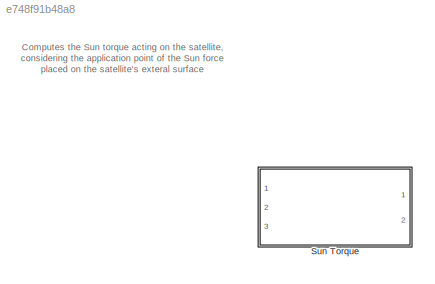
MODEL slx_e748f91b48a8
KIND library
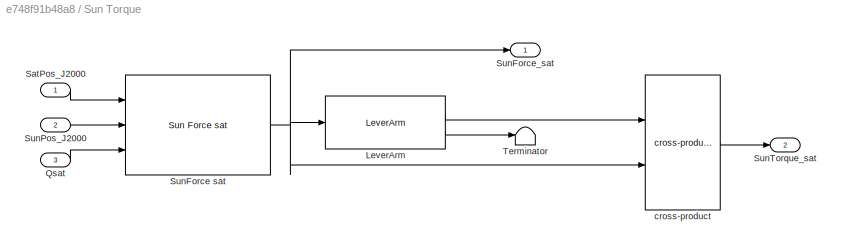
BLOCK [SubSystem] Sun Torque
  Ports = [3, 2]
  RequestExecContextInheritance = off
BLOCK [Reference] Sun Torque/LeverArm  REF=LeverArm/LeverArm
  Ports = [1, 2]
  SourceBlock = LeverArm/LeverArm
  SourceType = SubSystem
BLOCK [Inport] Sun Torque/Qsat
  IconDisplay = Port number
  Port = 3
BLOCK [Inport] Sun Torque/SatPos_J2000
  IconDisplay = Port number
BLOCK [Reference] Sun Torque/SunForce sat  REF=SunForce_sat/Sun Force sat
  Ports = [3, 1]
  SourceBlock = SunForce_sat/Sun Force sat
  SourceType = SubSystem
BLOCK [Outport] Sun Torque/SunForce_sat
  IconDisplay = Port number
BLOCK [Inport] Sun Torque/SunPos_J2000
  IconDisplay = Port number
  Port = 2
BLOCK [Outport] Sun Torque/SunTorque_sat
  IconDisplay = Port number
  Port = 2
BLOCK [Terminator] Sun Torque/Terminator
BLOCK [Reference] Sun Torque/cross-product  REF=CrossProd/cross-product
  Ports = [2, 1]
  SourceBlock = CrossProd/cross-product
  SourceType = SubSystem
ANNOTATION (root): Computes the Sun torque acting on the satellite, considering the application point of the Sun force placed on the satellite's exteral surface
LINE Sun Torque/LeverArm:1 -> Sun Torque/cross-product:1
LINE Sun Torque/LeverArm:2 -> Sun Torque/Terminator:1
LINE Sun Torque/Qsat:1 -> Sun Torque/SunForce sat:3
LINE Sun Torque/SatPos_J2000:1 -> Sun Torque/SunForce sat:1
NET Sun Torque/SunForce sat:1 -> Sun Torque/LeverArm:1, Sun Torque/SunForce_sat:1, Sun Torque/cross-product:2
LINE Sun Torque/SunPos_J2000:1 -> Sun Torque/SunForce sat:2
LINE Sun Torque/cross-product:1 -> Sun Torque/SunTorque_sat:1
note: NET lines group one-source signal fan-out (src -> all destinations, sorted); 1:1 wires keep LINE
